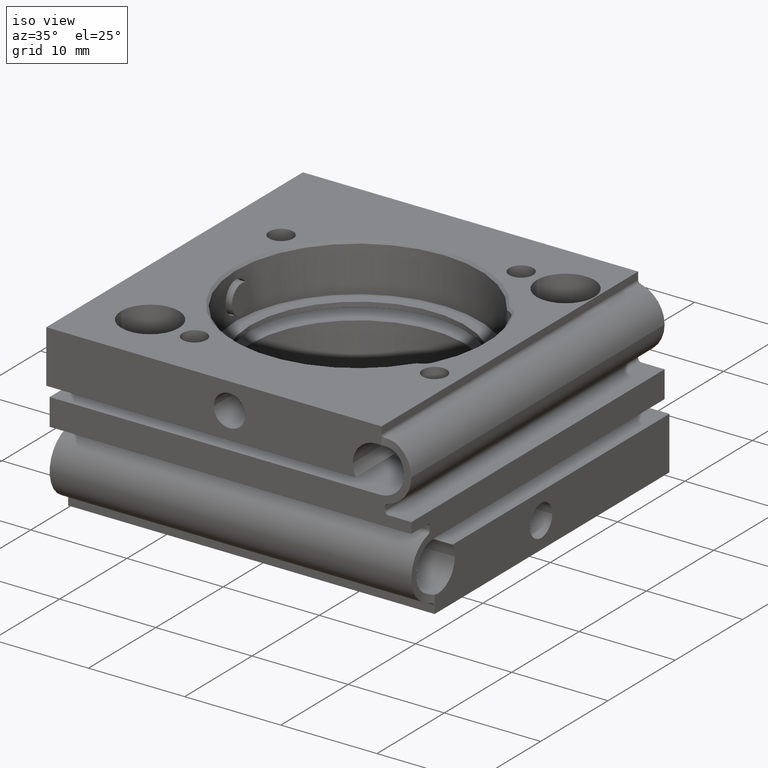
[diagram: clean part render]
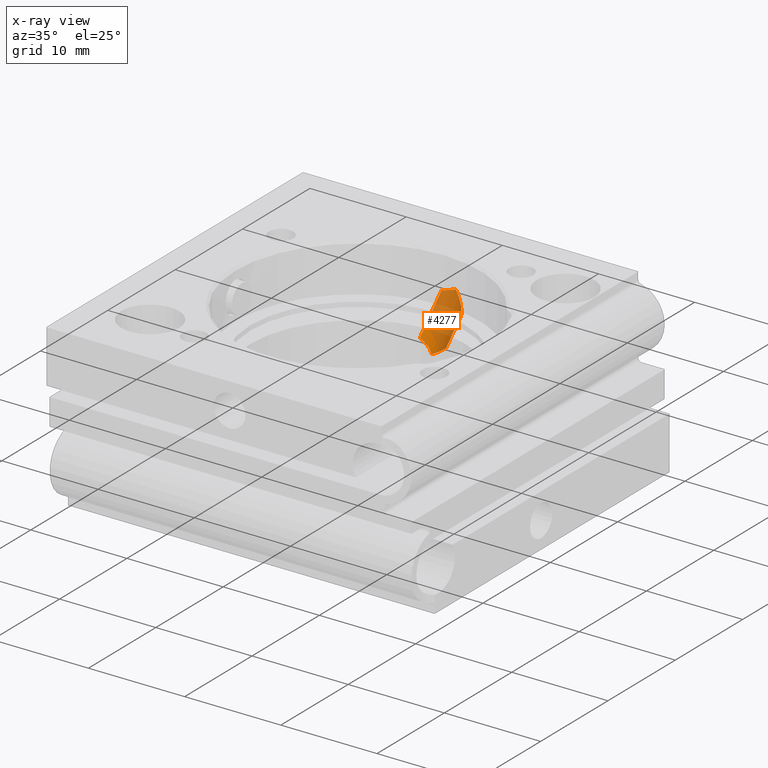
[diagram: x-ray — body ghosted, one internal face saturated and labeled with its STEP entity id]
A machine part, iso view, then the same camera in x-ray: the body is ghosted and one INTERNAL B-rep face — a face not visible from any outside direction — is saturated and labeled: STEP entity #4277.
In plain terms, the highlighted cylindrical surface (edge-blend (fillet) strip) has radius 2.25 mm, axis along (0, 0.7071, 0.7071).
Its self-contained STEP definition (entity closure, byte-faithful):
#571 = EDGE_CURVE ( 'NONE', #7548, #9028, #8132, .T. ) ;
#635 = EDGE_CURVE ( 'NONE', #4811, #2129, #7781, .T. ) ;
#985 = CARTESIAN_POINT ( 'NONE',  ( -3.242448020018118715, 15.05950094913712256, -1.612153836831058618 ) ) ;
#1164 = CARTESIAN_POINT ( 'NONE',  ( -2.550000000000000711, 19.04999999999999716, 0.8925567017767724876 ) ) ;
#1265 = ORIENTED_EDGE ( 'NONE', *, *, #7271, .F. ) ;
#1622 = ORIENTED_EDGE ( 'NONE', *, *, #4534, .F. ) ;
#1643 = CARTESIAN_POINT ( 'NONE',  ( -2.900164480803667288, 15.02047981957093548, -2.250000000000000444 ) ) ;
#2017 = CARTESIAN_POINT ( 'NONE',  ( -3.157855605715800262, 19.04999999999999716, 2.249999999999997780 ) ) ;
#2129 = VERTEX_POINT ( 'NONE', #4951 ) ;
#2355 = ORIENTED_EDGE ( 'NONE', *, *, #6336, .F. ) ;
#2466 = ORIENTED_EDGE ( 'NONE', *, *, #2725, .T. ) ;
#2725 = EDGE_CURVE ( 'NONE', #5076, #8664, #3288, .T. ) ;
#2727 = CYLINDRICAL_SURFACE ( 'NONE', #9268, 2.250000000000000000 ) ;
#3150 = CARTESIAN_POINT ( 'NONE',  ( -4.050000325579163452, 18.22525236890463773, 2.249999999999997780 ) ) ;
#3288 = LINE ( 'NONE', #6427, #5786 ) ;
#3477 = CARTESIAN_POINT ( 'NONE',  ( -3.005378581977503405, 15.06877397230535820, -1.980306142518013734 ) ) ;
#3495 = CARTESIAN_POINT ( 'NONE',  ( -4.800000000000001599, 11.29327201635468469, -7.681980515339462912 ) ) ;
#3990 = LINE ( 'NONE', #4151, #7703 ) ;
#4092 = DIRECTION ( 'NONE',  ( 4.736182775297911173E-17, 0.7071067811865487940, 0.7071067811865463515 ) ) ;
#4151 = CARTESIAN_POINT ( 'NONE',  ( -2.550000000000000711, 11.29327201635468469, -7.681980515339462912 ) ) ;
#4277 = ADVANCED_FACE ( 'NONE', ( #7564 ), #2727, .F. ) ;
#4534 = EDGE_CURVE ( 'NONE', #2129, #8664, #8485, .T. ) ;
#4811 = VERTEX_POINT ( 'NONE', #10397 ) ;
#4951 = CARTESIAN_POINT ( 'NONE',  ( -3.157855605715800262, 19.04999999999999716, 2.249999999999997780 ) ) ;
#5047 = CARTESIAN_POINT ( 'NONE',  ( -4.050000325579163452, 14.95430212238179202, -1.020950246522832616 ) ) ;
#5076 = VERTEX_POINT ( 'NONE', #10123 ) ;
#5095 = CARTESIAN_POINT ( 'NONE',  ( -3.538010310966844596, 15.01869113040439352, -1.296907343189900752 ) ) ;
#5219 = DIRECTION ( 'NONE',  ( 0.000000000000000000, 0.7071067811865465735, -0.7071067811865484609 ) ) ;
#5760 = CARTESIAN_POINT ( 'NONE',  ( -2.550000000000000266, 16.72525253169416715, -2.250000000000000444 ) ) ;
#5786 = VECTOR ( 'NONE', #6588, 1000.000000000000000 ) ;
#6336 = EDGE_CURVE ( 'NONE', #7548, #4811, #3990, .T. ) ;
#6427 = CARTESIAN_POINT ( 'NONE',  ( -4.050000325579163452, 17.57707256453073441, 1.601820195626099785 ) ) ;
#6588 = DIRECTION ( 'NONE',  ( 4.736182775297912406E-17, 0.7071067811865487940, 0.7071067811865463515 ) ) ;
#6856 = CARTESIAN_POINT ( 'NONE',  ( -2.762535248926783371, 19.04999999999999716, 1.653128511849696780 ) ) ;
#7178 = CARTESIAN_POINT ( 'NONE',  ( -3.708560308236453995, 18.39597229420168034, 2.249999999999997780 ) ) ;
#7271 = EDGE_CURVE ( 'NONE', #5076, #9028, #8844, .T. ) ;
#7402 = CARTESIAN_POINT ( 'NONE',  ( -2.550000000000001155, 16.11742028607348587, -2.250000000000000444 ) ) ;
#7517 = DIRECTION ( 'NONE',  ( 4.736182775297911173E-17, 0.7071067811865487940, 0.7071067811865463515 ) ) ;
#7540 = ORIENTED_EDGE ( 'NONE', *, *, #635, .F. ) ;
#7548 = VERTEX_POINT ( 'NONE', #9963 ) ;
#7564 = FACE_OUTER_BOUND ( 'NONE', #8182, .T. ) ;
#7599 = CARTESIAN_POINT ( 'NONE',  ( -2.900164480803667288, 15.02047981957093548, -2.250000000000000444 ) ) ;
#7703 = VECTOR ( 'NONE', #4092, 1000.000000000000000 ) ;
#7712 = CARTESIAN_POINT ( 'NONE',  ( -2.944799357530563100, 15.05667395756447746, -2.114321721278872079 ) ) ;
#7781 =( BOUNDED_CURVE ( )  B_SPLINE_CURVE ( 3, ( #8607, #1164, #6856, #2017 ),
 .UNSPECIFIED., .F., .T. ) 
 B_SPLINE_CURVE_WITH_KNOTS ( ( 4, 4 ),
 ( 4.712388980384689674, 5.465094577752592109 ),
 .UNSPECIFIED. ) 
 CURVE ( )  GEOMETRIC_REPRESENTATION_ITEM ( )  RATIONAL_B_SPLINE_CURVE ( ( 1.000000000000000000, 0.9533408517492528711, 0.9533408517492528711, 1.000000000000000000 ) ) 
 REPRESENTATION_ITEM ( '' )  );
#7999 = CARTESIAN_POINT ( 'NONE',  ( -3.405428346330525269, 18.67620414664093431, 2.249999999999997780 ) ) ;
#8027 = CARTESIAN_POINT ( 'NONE',  ( -2.900164480803667288, 15.02047981957093548, -2.250000000000000444 ) ) ;
#8132 =( BOUNDED_CURVE ( )  B_SPLINE_CURVE ( 3, ( #5760, #7402, #10768, #1643 ),
 .UNSPECIFIED., .F., .T. ) 
 B_SPLINE_CURVE_WITH_KNOTS ( ( 4, 4 ),
 ( 1.570796326794896558, 2.136201972407040017 ),
 .UNSPECIFIED. ) 
 CURVE ( )  GEOMETRIC_REPRESENTATION_ITEM ( )  RATIONAL_B_SPLINE_CURVE ( ( 1.000000000000000000, 0.9735366589981024887, 0.9735366589981024887, 1.000000000000000000 ) ) 
 REPRESENTATION_ITEM ( '' )  );
#8182 = EDGE_LOOP ( 'NONE', ( #1265, #2466, #1622, #7540, #2355, #8263 ) ) ;
#8263 = ORIENTED_EDGE ( 'NONE', *, *, #571, .T. ) ;
#8485 =( BOUNDED_CURVE ( )  B_SPLINE_CURVE ( 3, ( #10703, #7999, #7178, #9929 ),
 .UNSPECIFIED., .F., .T. ) 
 B_SPLINE_CURVE_WITH_KNOTS ( ( 4, 4 ),
 ( 2.323501924162799881, 2.801755897615155977 ),
 .UNSPECIFIED. ) 
 CURVE ( )  GEOMETRIC_REPRESENTATION_ITEM ( )  RATIONAL_B_SPLINE_CURVE ( ( 1.000000000000000000, 0.9810300814800738678, 0.9810300814800738678, 1.000000000000000000 ) ) 
 REPRESENTATION_ITEM ( '' )  );
#8607 = CARTESIAN_POINT ( 'NONE',  ( -2.550000000000000266, 19.04999999999999716, 0.07474746830582362778 ) ) ;
#8664 = VERTEX_POINT ( 'NONE', #3150 ) ;
#8844 = B_SPLINE_CURVE_WITH_KNOTS ( 'NONE', 3,
 ( #5047, #10084, #5095, #985, #9142, #3477, #7712, #7599 ),
 .UNSPECIFIED., .F., .F.,
 ( 4, 2, 2, 4 ),
 ( 0.003262688626028127040, 0.004128927943135771855, 0.004562047601689595347, 0.004995167260243417971 ),
 .UNSPECIFIED. ) ;
#9028 = VERTEX_POINT ( 'NONE', #8027 ) ;
#9142 = CARTESIAN_POINT ( 'NONE',  ( -3.153661306878012383, 15.07011929373881642, -1.730136671837873896 ) ) ;
#9268 = AXIS2_PLACEMENT_3D ( 'NONE', #3495, #7517, #5219 ) ;
#9929 = CARTESIAN_POINT ( 'NONE',  ( -4.050000325579163452, 18.22525236890463773, 2.249999999999997780 ) ) ;
#9963 = CARTESIAN_POINT ( 'NONE',  ( -2.550000000000000266, 16.72525253169416715, -2.250000000000000444 ) ) ;
#10084 = CARTESIAN_POINT ( 'NONE',  ( -3.782023854406809438, 14.97988852728580689, -1.129352011769273023 ) ) ;
#10123 = CARTESIAN_POINT ( 'NONE',  ( -4.050000325579163452, 14.95430212238179202, -1.020950246522832616 ) ) ;
#10397 = CARTESIAN_POINT ( 'NONE',  ( -2.550000000000000266, 19.04999999999999716, 0.07474746830582362778 ) ) ;
#10703 = CARTESIAN_POINT ( 'NONE',  ( -3.157855605715800262, 19.04999999999999716, 2.249999999999997780 ) ) ;
#10768 = CARTESIAN_POINT ( 'NONE',  ( -2.669894297274172157, 15.53371594843451220, -2.250000000000000444 ) ) ;